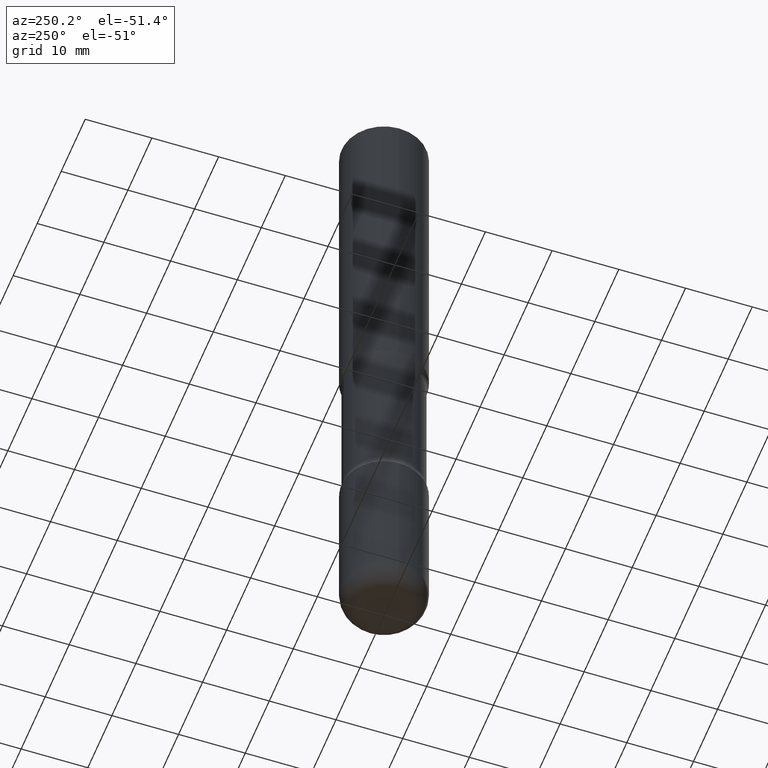
[diagram: clean part render]
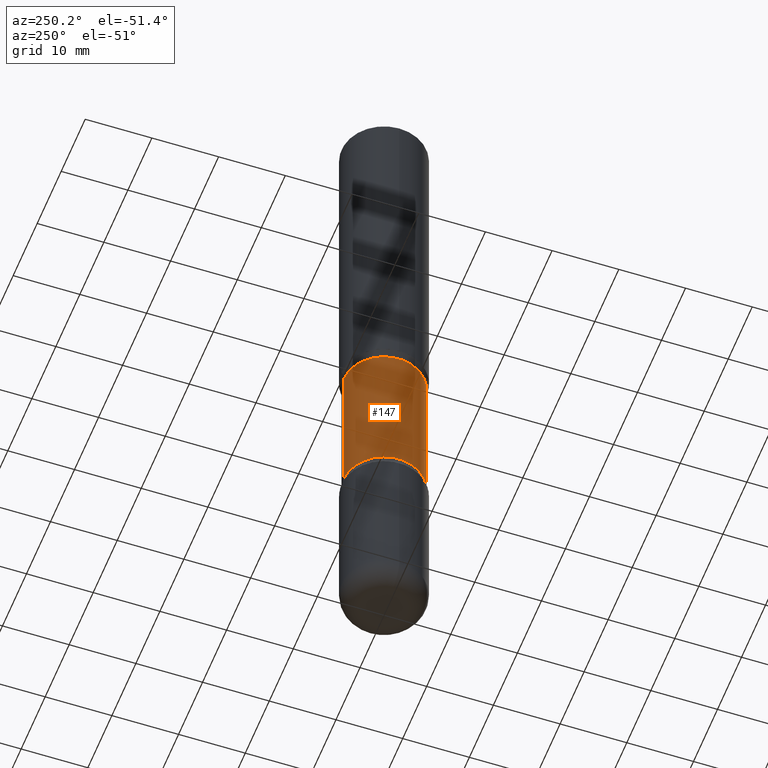
[diagram: same view with one face highlighted and labeled with its STEP entity id]
A machine part, auxiliary view. The second image highlights one B-rep face of the part: STEP entity #147.
In plain terms, the highlighted cylindrical surface (partial cylindrical patch) has radius 6.0325 mm, axis along (0, -0, -1).
Its self-contained STEP definition (entity closure, byte-faithful):
#13 = CARTESIAN_POINT ( 'NONE',  ( 4.943898765775623630E-29, -7.288170524422749615E-15, -2.054486236794258680 ) ) ;
#22 = DIRECTION ( 'NONE',  ( 2.530378452311521502E-29, -3.369885892833230592E-15, -1.000000000000000000 ) ) ;
#30 = AXIS2_PLACEMENT_3D ( 'NONE', #172, #264, #181 ) ;
#58 = CIRCLE ( 'NONE', #345, 0.2375000000000001277 ) ;
#85 = VECTOR ( 'NONE', #93, 39.37007874015748143 ) ;
#93 = DIRECTION ( 'NONE',  ( 2.530378452311521502E-29, -3.369885892833230592E-15, -1.000000000000000000 ) ) ;
#101 = ORIENTED_EDGE ( 'NONE', *, *, #275, .F. ) ;
#130 = CARTESIAN_POINT ( 'NONE',  ( 1.658453635950538436E-15, 0.2374999999999928557, -2.054486236794259568 ) ) ;
#147 = ADVANCED_FACE ( 'NONE', ( #472 ), #433, .T. ) ;
#161 = EDGE_CURVE ( 'NONE', #286, #204, #404, .T. ) ;
#162 = AXIS2_PLACEMENT_3D ( 'NONE', #526, #173, #385 ) ;
#164 = EDGE_LOOP ( 'NONE', ( #329, #480, #535, #101 ) ) ;
#172 = CARTESIAN_POINT ( 'NONE',  ( 7.198535619023675570E-29, -1.029083161580289368E-14, -2.945513763205741320 ) ) ;
#173 = DIRECTION ( 'NONE',  ( 2.530378452311521502E-29, -3.369885892833230986E-15, -1.000000000000000000 ) ) ;
#181 = DIRECTION ( 'NONE',  ( 6.982962677686265133E-15, 1.000000000000000000, -2.300503573612010239E-15 ) ) ;
#204 = VERTEX_POINT ( 'NONE', #529 ) ;
#264 = DIRECTION ( 'NONE',  ( 2.530378452311521502E-29, -3.369885892833230986E-15, -1.000000000000000000 ) ) ;
#275 = EDGE_CURVE ( 'NONE', #281, #204, #282, .T. ) ;
#281 = VERTEX_POINT ( 'NONE', #364 ) ;
#282 = CIRCLE ( 'NONE', #30, 0.2375000000000000722 ) ;
#286 = VERTEX_POINT ( 'NONE', #130 ) ;
#309 = VECTOR ( 'NONE', #22, 39.37007874015748143 ) ;
#329 = ORIENTED_EDGE ( 'NONE', *, *, #354, .F. ) ;
#345 = AXIS2_PLACEMENT_3D ( 'NONE', #13, #370, #530 ) ;
#354 = EDGE_CURVE ( 'NONE', #415, #281, #393, .T. ) ;
#364 = CARTESIAN_POINT ( 'NONE',  ( -1.672246386956739071E-15, -0.2375000000000103417, -2.945513763205740876 ) ) ;
#370 = DIRECTION ( 'NONE',  ( 2.530378452311521502E-29, -3.369885892833230986E-15, -1.000000000000000000 ) ) ;
#371 = CARTESIAN_POINT ( 'NONE',  ( 1.658453635950587543E-15, 0.2374999999999862776, -4.000000000000000888 ) ) ;
#385 = DIRECTION ( 'NONE',  ( 6.982962677686265133E-15, 1.000000000000000000, -2.300503573612010239E-15 ) ) ;
#393 = LINE ( 'NONE', #521, #85 ) ;
#404 = LINE ( 'NONE', #371, #309 ) ;
#415 = VERTEX_POINT ( 'NONE', #423 ) ;
#423 = CARTESIAN_POINT ( 'NONE',  ( -1.672246386956763723E-15, -0.2375000000000074274, -2.054486236794258236 ) ) ;
#433 = CYLINDRICAL_SURFACE ( 'NONE', #162, 0.2375000000000000999 ) ;
#472 = FACE_OUTER_BOUND ( 'NONE', #164, .T. ) ;
#480 = ORIENTED_EDGE ( 'NONE', *, *, #520, .T. ) ;
#520 = EDGE_CURVE ( 'NONE', #415, #286, #58, .T. ) ;
#521 = CARTESIAN_POINT ( 'NONE',  ( -1.629368274470640415E-15, -0.2375000000000139222, -3.999999999999999556 ) ) ;
#526 = CARTESIAN_POINT ( 'NONE',  ( 9.866784870866931853E-29, -1.384432990936266734E-14, -4.000000000000000000 ) ) ;
#529 = CARTESIAN_POINT ( 'NONE',  ( 1.658453635950560525E-15, 0.2374999999999897748, -2.945513763205741764 ) ) ;
#530 = DIRECTION ( 'NONE',  ( 6.982962677686265133E-15, 1.000000000000000000, -3.450755360418014766E-15 ) ) ;
#535 = ORIENTED_EDGE ( 'NONE', *, *, #161, .T. ) ;